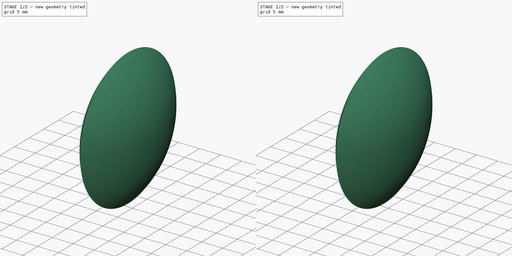
[diagram: build sequence overview — one tinted view per stage of 2, left to right]
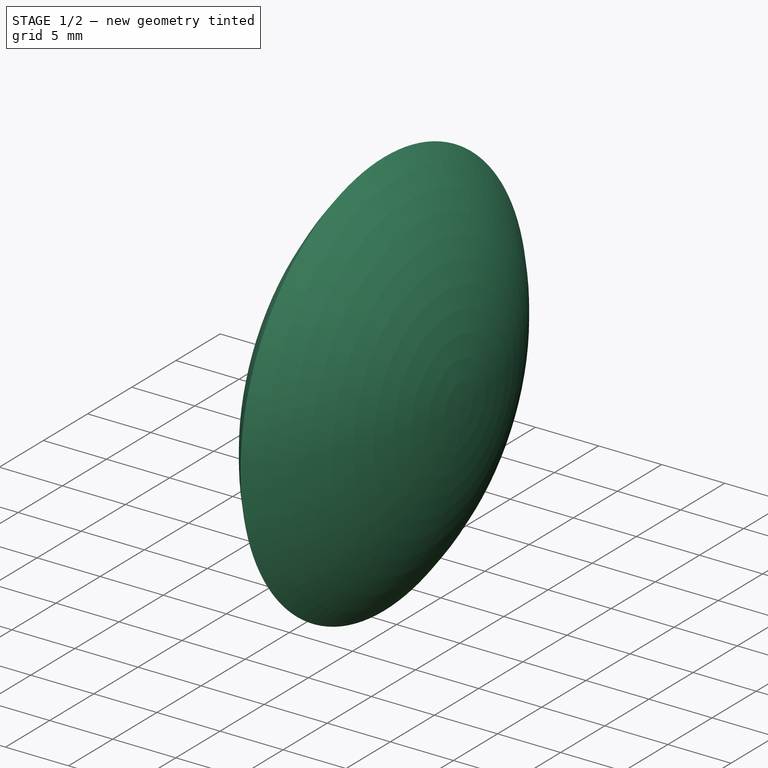
[diagram: stage 1 of 2 — iso view after this stage's code; geometry added in this stage tinted green]
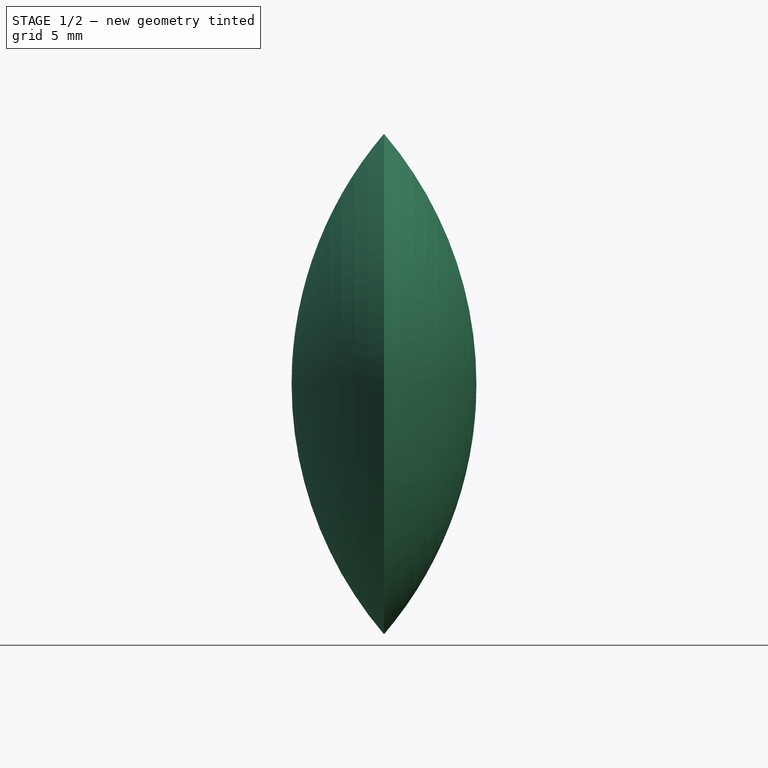
[diagram: stage 1 of 2 — front view after this stage's code; geometry added in this stage tinted green]
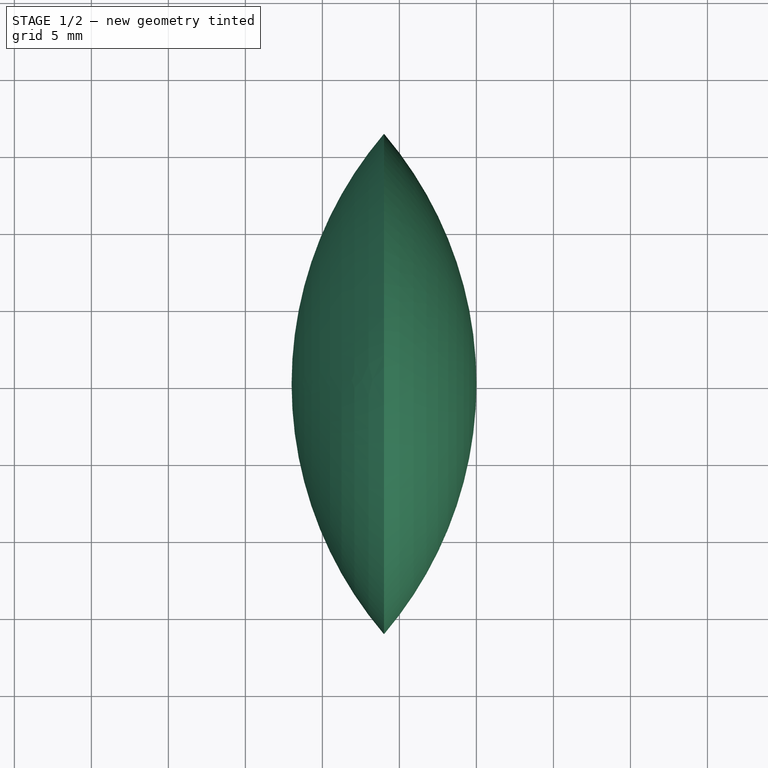
[diagram: stage 1 of 2 — top view after this stage's code; geometry added in this stage tinted green]
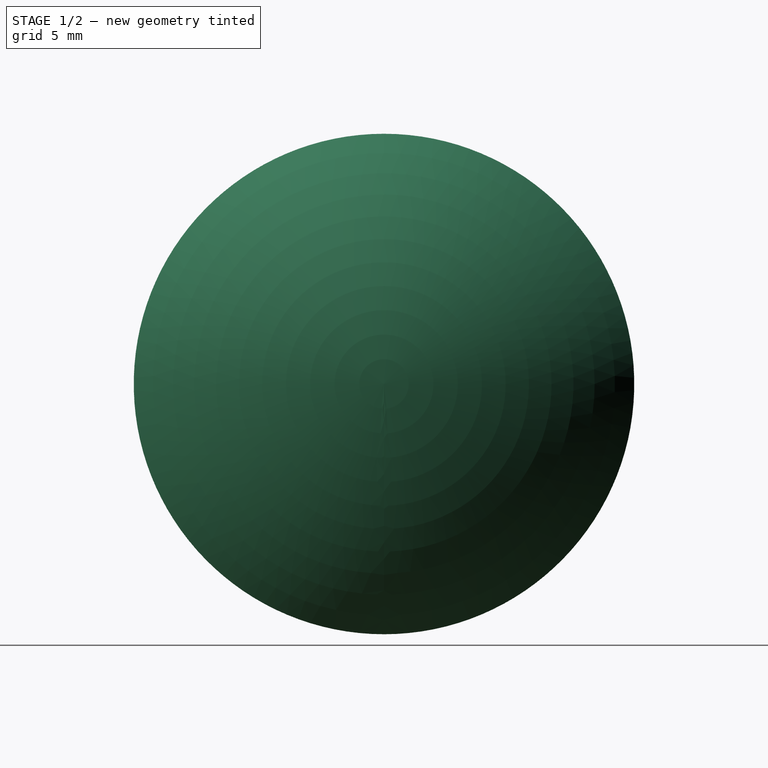
[diagram: stage 1 of 2 — right view after this stage's code; geometry added in this stage tinted green]
FCSTD DOCUMENT  (FreeCAD 0.18R4 (GitTag))
Label: calotas
License: All rights reserved
LicenseURL: http://en.wikipedia.org/wiki/All_rights_reserved
objects: Drawing::FeatureViewPart×3, Drawing::FeatureViewPython×3, Sketcher::SketchObject×2, PartDesign::Revolution×1, PartDesign::Body×1, Part::FeaturePython×1, Part::MultiFuse×1, Drawing::FeaturePage×1
note: 7 computed .brp shape members not serialized (recipe doc carries the construction recipe); baked Part::Feature solids carry a one-line shape summary decoded from their .brp

FEATURE [Sketcher::SketchObject] Sketch
  MapMode = 5
  Placement = pos=(0,0,0) rot=(1,0,0;1.5708rad)
  Support = -> [XZ_Plane]
  sketch-geometry (3):
    g0: ArcOfCircle CenterX=0 CenterY=0 CenterZ=0 NormalX=0 NormalY=0 NormalZ=1 AngleXU=0 Radius=25 StartAngle=1.90204e-08 EndAngle=0.707483
    g1: LineSegment StartX=19 StartY=4.7551e-07 StartZ=0 EndX=19 EndY=16.2481 EndZ=0
    g2: LineSegment StartX=19 StartY=4.7551e-07 StartZ=0 EndX=25 EndY=4.7551e-07 EndZ=0
  constraints (6):
    c: Radius(g0) = 25
    c: Coincident(g0,g-1)
    c: Coincident(g1,g2)
    c: Coincident(g0,g2)
    c: Coincident(g0,g1)
    c: Perpendicular(g2,g1)
FEATURE [Sketcher::SketchObject] Sketch001
  MapMode = 5
  Placement = pos=(0,0,0) rot=(1,0,0;1.5708rad)
  Support = -> [XZ_Plane]
FEATURE [PartDesign::Revolution] Revolution
  Angle = 360
  Axis = (1,0,0)
  Base = (0,0,0)
  Midplane = true
  Placement = pos=(0,0,0) rot=(1,0,0;1.5708rad)
  Profile = -> Sketch
  ReferenceAxis = -> Sketch [H_Axis]
FEATURE [PartDesign::Body] Body
  Group = -> [Sketch,Sketch001,Revolution]
  Origin = -> Origin
  Tip = -> Revolution
FEATURE [Part::FeaturePython] b_calotas_001_  label="calotas_001"  # a2plus imported part (geometry in sourceFile) (typed FeaturePython)
  Placement = pos=(38,0,9e-15) rot=(0,1,0;3.14159rad)
  a2p_Version = V0.1
  fixedPosition = true
  objectType = a2pPart
  sourceFile = .\calotas.FCStd
  subassemblyImport = false
  timeLastImport = 1.62596e+09
  updateColors = true
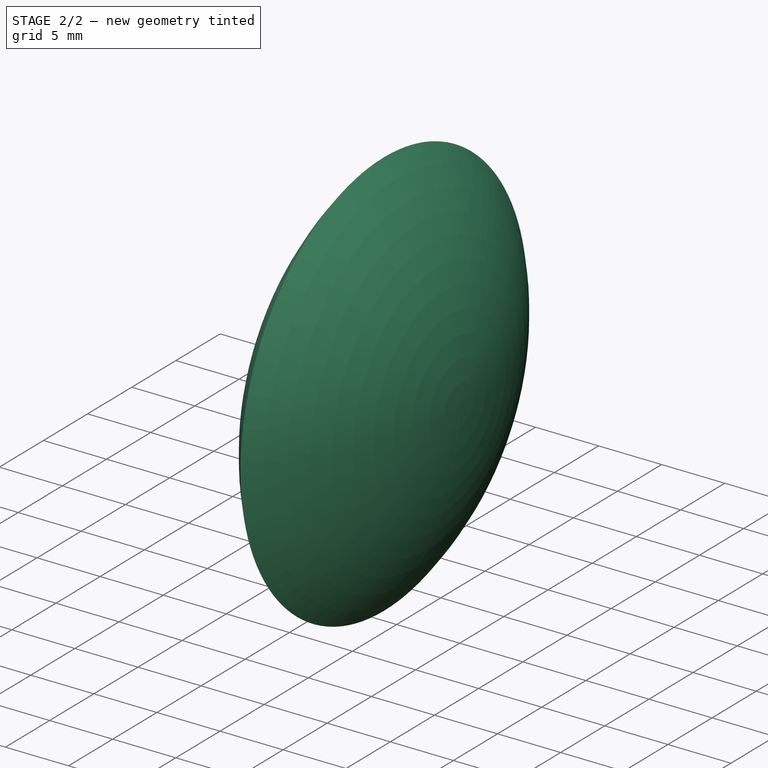
[diagram: stage 2 of 2 — iso view after this stage's code; geometry added in this stage tinted green]
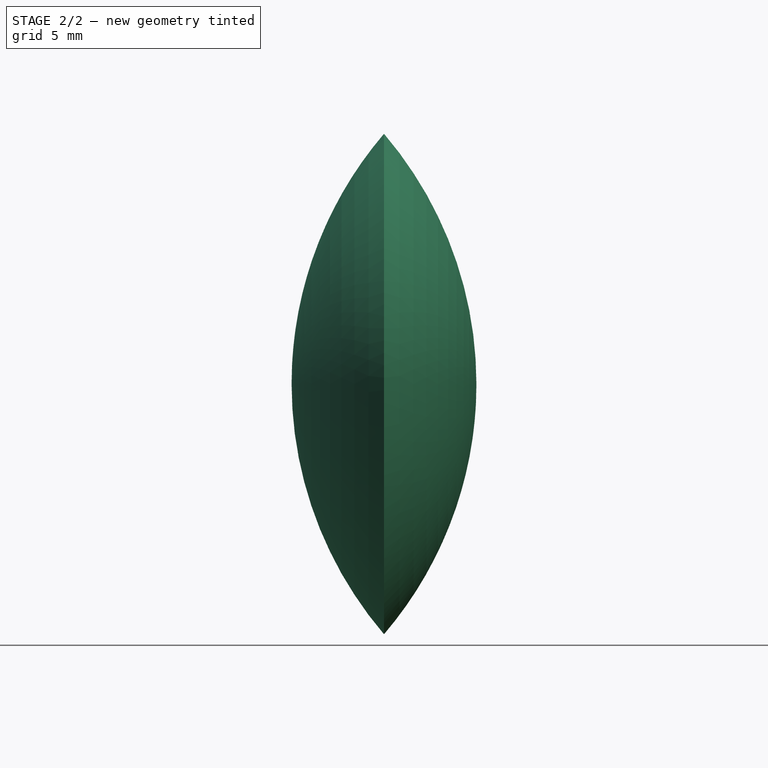
[diagram: stage 2 of 2 — front view after this stage's code; geometry added in this stage tinted green]
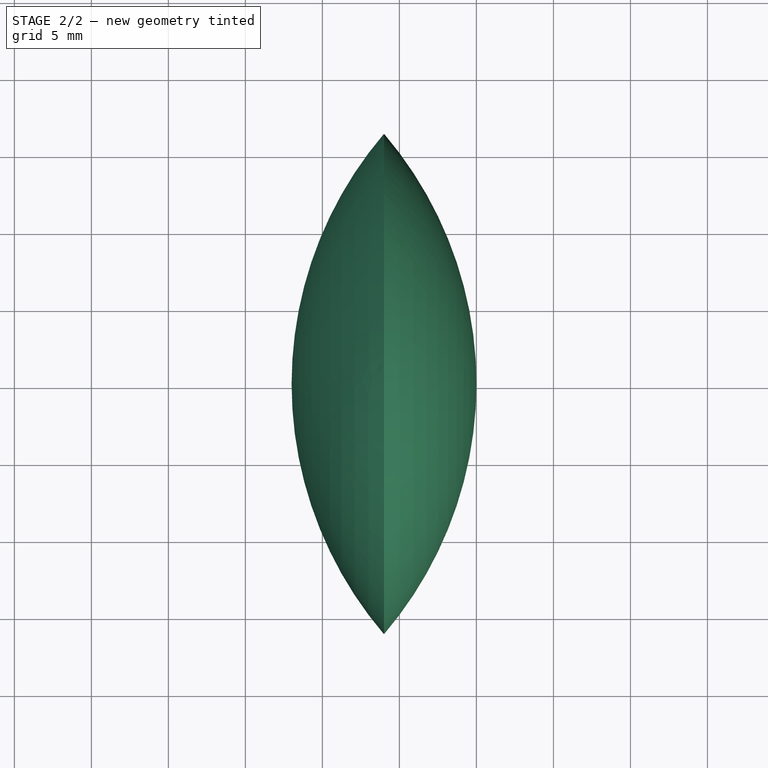
[diagram: stage 2 of 2 — top view after this stage's code; geometry added in this stage tinted green]
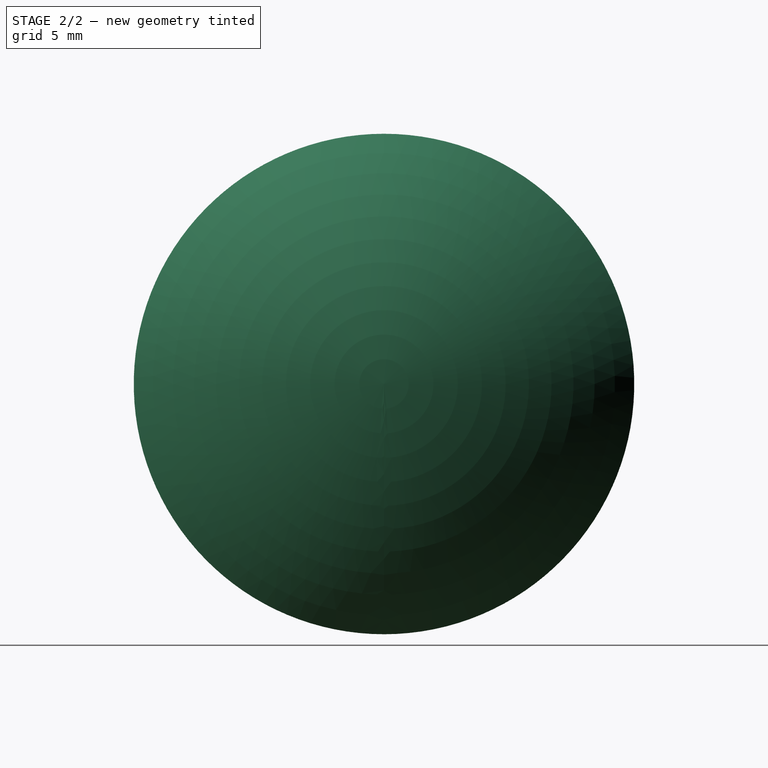
[diagram: stage 2 of 2 — right view after this stage's code; geometry added in this stage tinted green]
FEATURE [Part::MultiFuse] Fusion
  Shapes = -> [b_calotas_001_,Revolution]
FEATURE [Drawing::FeatureViewPart] Ortho  label="Ortho_0_0"
  Direction = (1,0,0)
  HiddenWidth = 0.15
  LineWidth = 0.35
  Rotation = -90
  Scale = 3.75
  ShowHiddenLines = false
  ShowSmoothLines = false
  Source = -> Fusion
  Tolerance = 0.05
  ViewResult = <g id="Ortho_0_0"\n   transform="rotate(-90,106.08,272.92) translate(106.08,272.92) scale(3.75,3.75)"\n  >\n<g   fill="none"\n   stroke="rgb(0, 0, 0)"\n   stroke-linecap="butt"\n   stroke-linejoin="miter"\n   stroke-width="0.093333"\n   transform="scale(1,-1)"\n  >\n<path d="M16.2481 8.83358e-15 A16.2481 16.2481 0 0 0 -16.2481 -1.08234e-14" /><path d="M-16.2481 -1.08234e-14 A16.2481 16.2481 0 0 0 16.2481 1.28132e-14" /><circle cx ="0" cy ="0" r ="4.7551e-07" /></g>\n</g>
  Visible = true
  X = 106.08
  Y = 272.92
FEATURE [Drawing::FeatureViewPart] Ortho001  label="Ortho_1_1"
  Direction = (0.57735,0.57735,0.57735)
  HiddenWidth = 0.15
  LineWidth = 0.35
  Rotation = 120
  Scale = 3.75
  ShowHiddenLines = false
  ShowSmoothLines = false
  Source = -> Fusion
  Tolerance = 0.05
  ViewResult = <g id="Ortho_1_1"\n   transform="rotate(120,292.542,66.7521) translate(292.542,66.7521) scale(3.75,3.75)"\n  >\n<g   fill="none"\n   stroke="rgb(0, 0, 0)"\n   stroke-linecap="butt"\n   stroke-linejoin="miter"\n   stroke-width="0.093333"\n   transform="scale(1,-1)"\n  >\n<path d="M11.2864 4.03524 A25 25 0 0 1 2.1486 -11.792" /><path d="M15.5836 -19.5487 A25 25 0 0 1 24.7215 -3.72148" /></g>\n<g   fill="none"\n   stroke="rgb(0, 0, 0)"\n   stroke-linecap="butt"\n   stroke-linejoin="miter"\n   stroke-width="0.093333"\n   transform="scale(1,-1)"\n  >\n<path d="M1.9459 -14.39 A16.2481 9.38083 60 0 0 2.1486 -11.792" />\n<path d="M2.1486 -11.792 A16.2481 9.38083 60 0 0 11.2864 4.03524" />\n<path d="M11.2864 4.03524 A16.2481 9.38083 60 0 0 24.9242 -1.12347" />\n<path d="M24.9242 -1.12347 A16.2481 9.38083 60 0 0 24.7215 -3.72148" />\n<path d="M15.5836 -19.5487 A16.2481 9.38083 60 0 0 1.9459 -14.39" />\n<g transform = "rotate(-120,17.6777,-10.2062)">\n<ellipse cx ="17.6777" cy ="-10.2062" rx ="4.7551e-07"  ry ="2.74536e-07"/>\n</g>\n<g transform = "rotate(-120,17.6777,-10.2062)">\n<ellipse cx ="17.6777" cy ="-10.2062" rx ="4.7551e-07"  ry ="2.74536e-07"/>\n</g>\n</g>\n</g>
  Visible = true
  X = 292.542
  Y = 66.7521
FEATURE [Drawing::FeatureViewPart] Ortho002  label="Ortho_0_1"
  Direction = (0,0,1)
  HiddenWidth = 0.15
  LineWidth = 0.35
  Rotation = 90
  Scale = 3.75
  ShowHiddenLines = false
  ShowSmoothLines = false
  Source = -> Fusion
  Tolerance = 0.05
  ViewResult = <g id="Ortho_0_1"\n   transform="rotate(90,106.08,24.5897) translate(106.08,24.5897) scale(3.75,3.75)"\n  >\n<g   fill="none"\n   stroke="rgb(0, 0, 0)"\n   stroke-linecap="butt"\n   stroke-linejoin="miter"\n   stroke-width="0.093333"\n   transform="scale(1,-1)"\n  >\n<path d="M13 -3.74986e-22 A25 25 0 0 1 19 -16.2481" /><path d="M19 16.2481 A25 25 0 0 1 13 6.12323e-15" /><path d="M19 -16.2481 A25 25 0 0 1 25 -3.06162e-15" /><path d="M25 -3.06162e-15 A25 25 0 0 1 19 16.2481" /></g>\n<g   fill="none"\n   stroke="rgb(0, 0, 0)"\n   stroke-linecap="butt"\n   stroke-linejoin="miter"\n   stroke-width="0.093333"\n   transform="scale(1,-1)"\n  >\n<path d="M19,-8.88178e-15 L19,1.81921  L19,3.61554  L19,5.3664  L19,7.04978  L19,8.6445  L19,10.1305  L19,11.4891  L19,12.7033  L19,13.7576  L19,14.639  L19,15.3363  L19,15.8407  L19,16.1459  L19,16.2481 " /><path d="M19,-16.2481 L19,-16.1459  L19,-15.8407  L19,-15.3363  L19,-14.639  L19,-13.7576  L19,-12.7033  L19,-11.4891  L19,-10.1305  L19,-8.6445  L19,-7.04978  L19,-5.3664  L19,-3.61554  L19,-1.81921  L19,-1.27676e-14 " /><path d="M13,-2.64698e-22 L13,-4.7551e-07 " /><path d="M13,-4.7551e-07 L13,-3.70577e-22 " /><path d="M25,-2.64698e-22 L25,-4.7551e-07 " /><path d="M25,-4.7551e-07 L25,-3.70577e-22 " /></g>\n</g>
  Visible = true
  X = 106.08
  Y = 24.5897
FEATURE [Drawing::FeatureViewPython] rad001  # drawing view (typed FeaturePython)
  Rotation = 0
  ViewResult = <g>  <circle cx ="106.080000" cy ="272.920000" r="0.250000" stroke="none" fill="rgb(0,0,0)" /> \n<line x1="175.998230" y1="241.616068" x2="106.080000" y2="272.920000" style="stroke:rgb(0,0,0);stroke-width:0.30" />\n<polygon points="161.691026,248.021718 158.544297,248.334925 158.040234,249.656258 159.361567,250.160321" style="fill:rgb(0,0,0);stroke:rgb(0,0,0);stroke-width:0" />\n<line x1="175.998230" y1="241.616068" x2="197.870843" y2="241.616068" style="stroke:rgb(0,0,0);stroke-width:0.30" />\n<text x="186.934536" y="239.616068" font-family="Verdana" font-size="5" fill="rgb(0,0,0)" text-anchor="middle" transform="rotate(0.000000 186.934536,239.616068)" >R16</text> </g>
  Visible = true
  X = 0
  Y = 0
  arrowL1 = 3
  arrowL2 = 1
  arrowW = 2
  arrow_scheme = 0
  autoPlaceOffset = 2
  autoPlaceText = true
  centerPointDia = 0.5
  click1_x = 175.998
  click1_y = 241.616
  click2_x = 197.871
  click2_y = 242.125
  click3_x = 197.871
  click3_y = 242.125
  comma_decimal_place = false
  lineColor = rgb(0,0,0)
  strokeWidth = 0.3
  textFormat_radial = R16
  textRenderer_color = rgb(0,0,0)
  textRenderer_family = Verdana
  textRenderer_size = 5
  unit_custom_scale = 1
  unit_scheme = 0
FEATURE [Drawing::FeatureViewPython] dim001  # drawing view (typed FeaturePython)
  Rotation = 0
  ViewResult = <g> \n  <line x1="103.079998" y1="73.339700" x2="26.021616" y2="73.339700" style="stroke:rgb(0,0,0);stroke-width:0.30" />\n<line x1="103.079998" y1="118.339700" x2="26.021616" y2="118.339700" style="stroke:rgb(0,0,0);stroke-width:0.30" />\n<line x1="29.021616" y1="73.339700" x2="29.021616" y2="118.339700" style="stroke:rgb(0,0,0);stroke-width:0.30" /> \n  <polygon points="29.021616,118.339700 30.021616,115.339700 29.021616,114.339700 28.021616,115.339700" style="fill:rgb(0,0,0);stroke:rgb(0,0,0);stroke-width:0" /><polygon points="29.021616,73.339700 28.021616,76.339700 29.021616,77.339700 30.021616,76.339700" style="fill:rgb(0,0,0);stroke:rgb(0,0,0);stroke-width:0" /> \n  <text x="27.021616" y="95.839700" font-family="Verdana" font-size="5" fill="rgb(0,0,0)" text-anchor="middle" transform="rotate(-90.000000 27.021616,95.839700)" >12</text> </g>
  Visible = true
  X = 0
  Y = 0
  arrowL1 = 3
  arrowL2 = 1
  arrowW = 2
  arrow_scheme = 0
  autoPlaceOffset = 2
  autoPlaceText = true
  click1_x = 29.0216
  click1_y = 116.473
  click2_x = 29.0216
  click2_y = 116.473
  comma_decimal_place = false
  dimension_line_overshoot = 3
  gap_datum_points = 3
  halfDimension_linear = false
  lineColor = rgb(0,0,0)
  strokeWidth = 0.3
  textFormat_linear = %(value)3.3f
  textRenderer_color = rgb(0,0,0)
  textRenderer_family = Verdana
  textRenderer_size = 5
  unit_custom_scale = 1
  unit_scheme = 0
FEATURE [Drawing::FeatureViewPython] rad002  # drawing view (typed FeaturePython)
  Rotation = 0
  ViewResult = <g>  <circle cx ="106.080087" cy ="167.089700" r="0.250000" stroke="none" fill="rgb(0,0,0)" /> \n<line x1="141.917648" y1="63.583176" x2="106.080087" y2="167.089700" style="stroke:rgb(0,0,0);stroke-width:0.30" />\n<polygon points="136.753107,78.499473 134.826608,81.007181 135.444391,82.279323 136.716533,81.661539" style="fill:rgb(0,0,0);stroke:rgb(0,0,0);stroke-width:0" />\n<line x1="141.917648" y1="63.583176" x2="170.911576" y2="63.583176" style="stroke:rgb(0,0,0);stroke-width:0.30" />\n<text x="156.414612" y="61.583176" font-family="Verdana" font-size="5" fill="rgb(0,0,0)" text-anchor="middle" transform="rotate(0.000000 156.414612,61.583176)" >R25</text> </g>
  Visible = true
  X = 0
  Y = 0
  arrowL1 = 3
  arrowL2 = 1
  arrowW = 2
  arrow_scheme = 0
  autoPlaceOffset = 2
  autoPlaceText = true
  centerPointDia = 0.5
  click1_x = 141.918
  click1_y = 63.5832
  click2_x = 170.912
  click2_y = 63.5832
  click3_x = 170.912
  click3_y = 63.5832
  comma_decimal_place = false
  lineColor = rgb(0,0,0)
  strokeWidth = 0.3
  textFormat_radial = R%(value)3.3f
  textRenderer_color = rgb(0,0,0)
  textRenderer_family = Verdana
  textRenderer_size = 5
  unit_custom_scale = 1
  unit_scheme = 0
FEATURE [Drawing::FeaturePage] Page
  Group = -> [Ortho,Ortho001,Ortho002,rad001,dim001,rad002]
  Template = <path>
note: 1 file-system path scrubbed to <path> (originals preserved in the JSON sidecar)
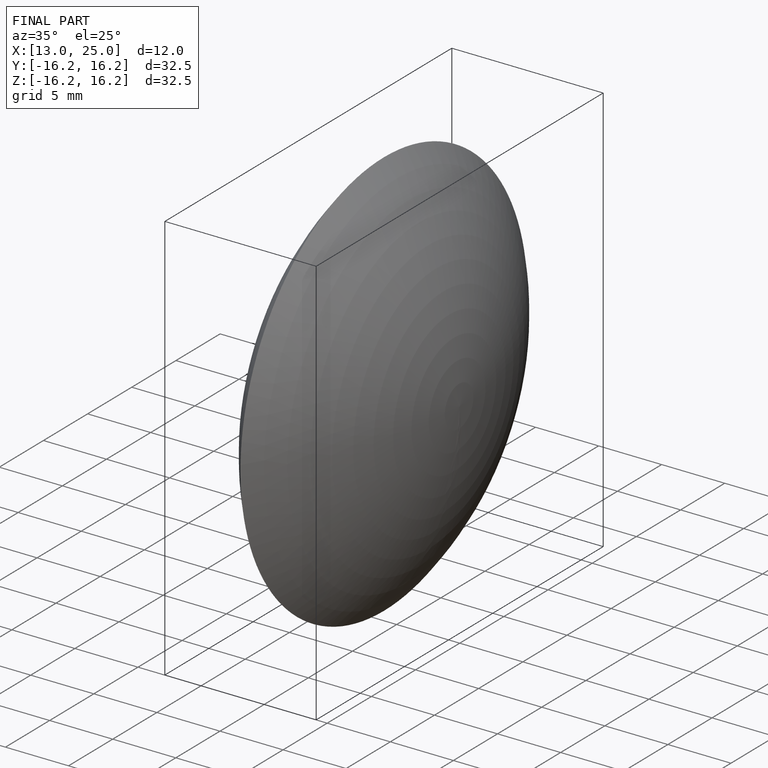
[diagram: finished part — iso view with bounding-box wireframe]
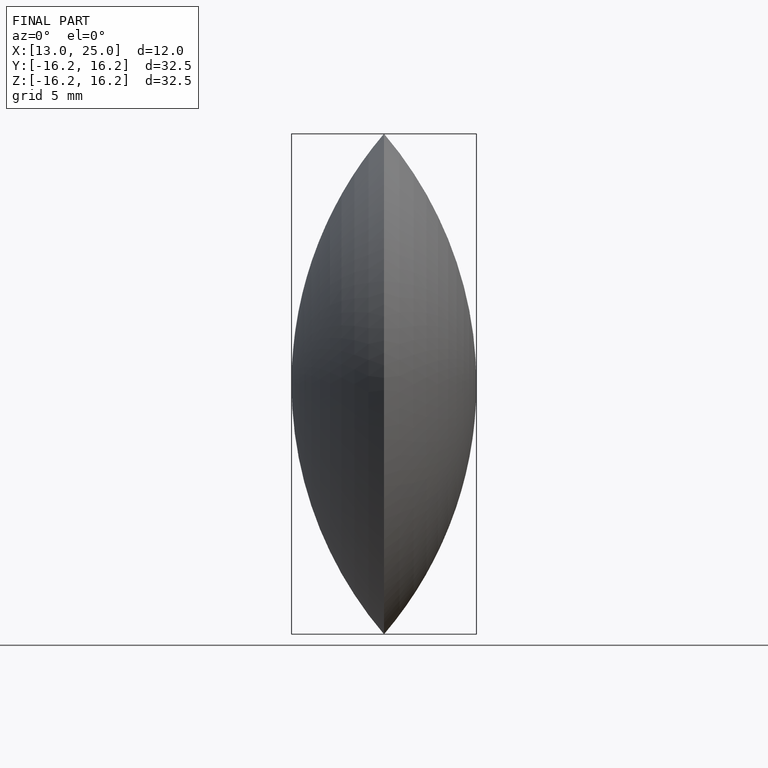
[diagram: finished part — front view with bounding-box wireframe]
